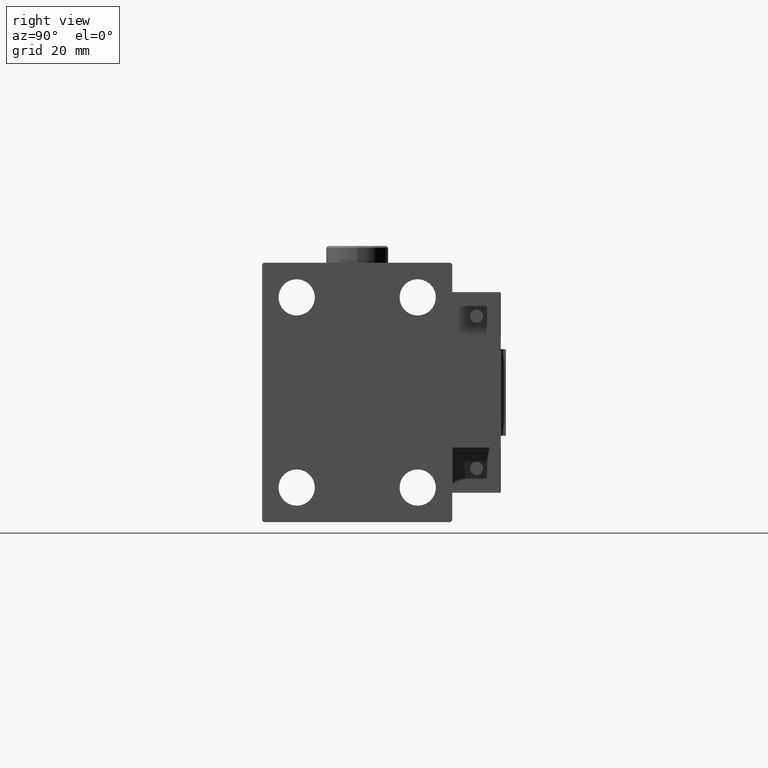
[diagram: clean part render]
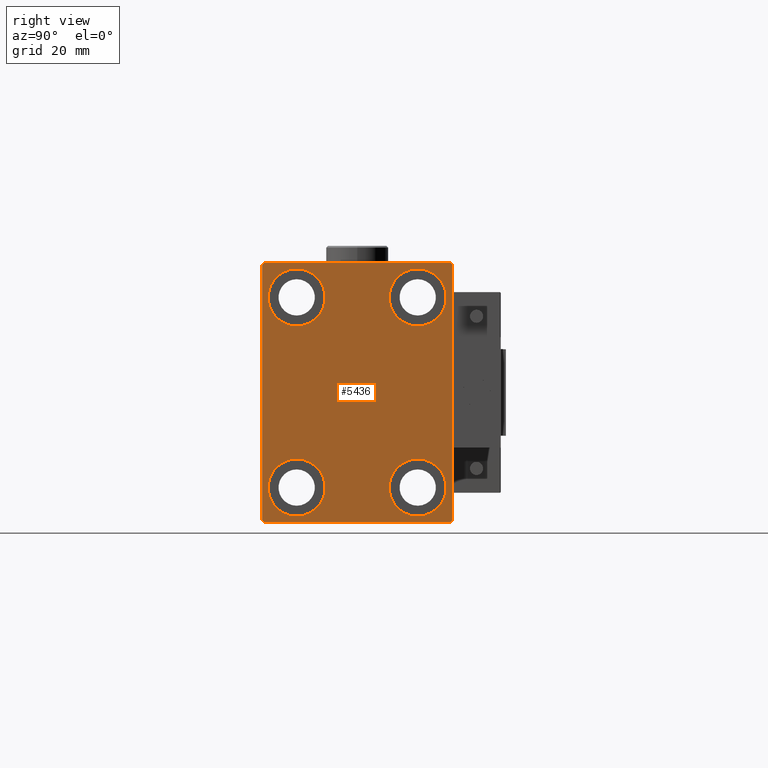
[diagram: same view with one face highlighted and labeled with its STEP entity id]
A machine part, right view. The second image highlights one B-rep face of the part: STEP entity #5436.
In plain terms, the highlighted planar face has unit normal (1, 0, 0).
Its self-contained STEP definition (entity closure, byte-faithful):
#67 = CARTESIAN_POINT ( 'NONE',  ( 105.0000000000000000, 17.50000000000000355, 19.25000000000000000 ) ) ;
#111 = CARTESIAN_POINT ( 'NONE',  ( 105.0000000000000000, 32.24999999999999289, -32.24999999999999289 ) ) ;
#1012 = CARTESIAN_POINT ( 'NONE',  ( 105.0000000000000000, 17.49999999999999645, -27.50000000000000355 ) ) ;
#1564 = DIRECTION ( 'NONE',  ( 0.000000000000000000, -0.7071067811865474617, -0.7071067811865474617 ) ) ;
#1590 = CIRCLE ( 'NONE', #48187, 8.250000000000000000 ) ;
#1649 = CARTESIAN_POINT ( 'NONE',  ( 105.0000000000000000, -27.50000000000000355, -37.00000000000000000 ) ) ;
#1743 = CARTESIAN_POINT ( 'NONE',  ( 105.0000000000000000, 27.50000000000000355, -36.99999999999998579 ) ) ;
#2610 = ORIENTED_EDGE ( 'NONE', *, *, #31699, .T. ) ;
#3902 = VECTOR ( 'NONE', #1564, 1000.000000000000114 ) ;
#4124 = VERTEX_POINT ( 'NONE', #42516 ) ;
#4378 = VECTOR ( 'NONE', #25221, 1000.000000000000000 ) ;
#5195 = CARTESIAN_POINT ( 'NONE',  ( 105.0000000000000000, 17.50000000000000355, 35.74999999999999289 ) ) ;
#5216 = VERTEX_POINT ( 'NONE', #12584 ) ;
#5427 = VERTEX_POINT ( 'NONE', #1743 ) ;
#5436 = ADVANCED_FACE ( 'NONE', ( #13228, #13740, #49955, #33026, #24946 ), #45515, .T. ) ;
#5475 = ORIENTED_EDGE ( 'NONE', *, *, #28929, .T. ) ;
#5704 = LINE ( 'NONE', #25755, #7893 ) ;
#6393 = VECTOR ( 'NONE', #18607, 1000.000000000000000 ) ;
#6540 = CARTESIAN_POINT ( 'NONE',  ( 105.0000000000000000, -32.25000000000000000, 32.25000000000000000 ) ) ;
#6750 = VERTEX_POINT ( 'NONE', #7171 ) ;
#7171 = CARTESIAN_POINT ( 'NONE',  ( 105.0000000000000000, -17.49999999999999645, 19.25000000000000000 ) ) ;
#7382 = CARTESIAN_POINT ( 'NONE',  ( 105.0000000000000000, -32.25000000000038369, -32.24999999999949551 ) ) ;
#7790 = ORIENTED_EDGE ( 'NONE', *, *, #12487, .T. ) ;
#7848 = DIRECTION ( 'NONE',  ( 0.000000000000000000, 0.000000000000000000, 1.000000000000000000 ) ) ;
#7893 = VECTOR ( 'NONE', #9617, 1000.000000000000000 ) ;
#9617 = DIRECTION ( 'NONE',  ( -0.000000000000000000, -0.7071067811865524577, 0.7071067811865426878 ) ) ;
#9627 = CARTESIAN_POINT ( 'NONE',  ( 105.0000000000000000, -27.00000000000001776, -37.50000000000000000 ) ) ;
#9840 = CARTESIAN_POINT ( 'NONE',  ( 105.0000000000000000, 0.000000000000000000, 0.000000000000000000 ) ) ;
#10711 = DIRECTION ( 'NONE',  ( 0.000000000000000000, 0.000000000000000000, 1.000000000000000000 ) ) ;
#10740 = CARTESIAN_POINT ( 'NONE',  ( 105.0000000000000000, -17.49999999999999645, 27.49999999999999645 ) ) ;
#11234 = CARTESIAN_POINT ( 'NONE',  ( 105.0000000000000000, 17.50000000000000355, 27.49999999999999645 ) ) ;
#11373 = AXIS2_PLACEMENT_3D ( 'NONE', #11234, #31547, #7848 ) ;
#12190 = LINE ( 'NONE', #20253, #49714 ) ;
#12203 = VERTEX_POINT ( 'NONE', #42317 ) ;
#12487 = EDGE_CURVE ( 'NONE', #5216, #4124, #5704, .T. ) ;
#12552 = VERTEX_POINT ( 'NONE', #5195 ) ;
#12584 = CARTESIAN_POINT ( 'NONE',  ( 105.0000000000000000, 27.49999999999999645, 37.00000000000001421 ) ) ;
#12585 = EDGE_CURVE ( 'NONE', #12203, #26832, #17049, .T. ) ;
#12826 = DIRECTION ( 'NONE',  ( 0.000000000000000000, 0.000000000000000000, 1.000000000000000000 ) ) ;
#12987 = CARTESIAN_POINT ( 'NONE',  ( 105.0000000000000000, 27.50000000000000355, -37.50000000000000000 ) ) ;
#13028 = CIRCLE ( 'NONE', #11373, 8.249999999999992895 ) ;
#13228 = FACE_BOUND ( 'NONE', #16919, .T. ) ;
#13266 = VERTEX_POINT ( 'NONE', #67 ) ;
#13577 = VERTEX_POINT ( 'NONE', #9627 ) ;
#13740 = FACE_BOUND ( 'NONE', #39333, .T. ) ;
#14180 = CIRCLE ( 'NONE', #22512, 8.250000000000000000 ) ;
#14245 = CARTESIAN_POINT ( 'NONE',  ( 105.0000000000000000, 17.49999999999999645, -27.50000000000000355 ) ) ;
#14492 = ORIENTED_EDGE ( 'NONE', *, *, #47479, .T. ) ;
#14542 = CARTESIAN_POINT ( 'NONE',  ( 105.0000000000000000, 26.99999999999998934, -37.50000000000000000 ) ) ;
#14953 = CARTESIAN_POINT ( 'NONE',  ( 105.0000000000000000, -27.50000000000000355, -37.50000000000000000 ) ) ;
#15167 = LINE ( 'NONE', #7382, #4378 ) ;
#15364 = DIRECTION ( 'NONE',  ( -1.000000000000000000, -0.000000000000000000, -0.000000000000000000 ) ) ;
#15727 = ORIENTED_EDGE ( 'NONE', *, *, #26321, .T. ) ;
#16782 = EDGE_CURVE ( 'NONE', #20748, #27705, #37260, .T. ) ;
#16919 = EDGE_LOOP ( 'NONE', ( #37216, #28365 ) ) ;
#17010 = AXIS2_PLACEMENT_3D ( 'NONE', #1012, #25243, #41404 ) ;
#17049 = CIRCLE ( 'NONE', #17010, 8.250000000000000000 ) ;
#17132 = DIRECTION ( 'NONE',  ( 0.000000000000000000, 0.000000000000000000, -1.000000000000000000 ) ) ;
#17835 = CARTESIAN_POINT ( 'NONE',  ( 105.0000000000000000, 17.49999999999999645, -35.75000000000000711 ) ) ;
#18113 = CARTESIAN_POINT ( 'NONE',  ( 105.0000000000000000, -27.00000000000000355, 37.50000000000000000 ) ) ;
#18329 = VERTEX_POINT ( 'NONE', #14542 ) ;
#18465 = EDGE_CURVE ( 'NONE', #4124, #20748, #12190, .T. ) ;
#18607 = DIRECTION ( 'NONE',  ( 0.000000000000000000, 0.000000000000000000, -1.000000000000000000 ) ) ;
#18834 = EDGE_LOOP ( 'NONE', ( #37723, #45033, #48888, #43764, #41907, #48587, #2610, #7790 ) ) ;
#20214 = ORIENTED_EDGE ( 'NONE', *, *, #36988, .T. ) ;
#20253 = CARTESIAN_POINT ( 'NONE',  ( 105.0000000000000000, 27.49999999999999645, 37.50000000000000711 ) ) ;
#20748 = VERTEX_POINT ( 'NONE', #18113 ) ;
#20891 = CARTESIAN_POINT ( 'NONE',  ( 105.0000000000000000, -17.50000000000000355, -27.50000000000000355 ) ) ;
#21790 = DIRECTION ( 'NONE',  ( 1.000000000000000000, 0.000000000000000000, 0.000000000000000000 ) ) ;
#21970 = LINE ( 'NONE', #14953, #22156 ) ;
#22055 = DIRECTION ( 'NONE',  ( 0.000000000000000000, 0.000000000000000000, 1.000000000000000000 ) ) ;
#22156 = VECTOR ( 'NONE', #45960, 1000.000000000000000 ) ;
#22512 = AXIS2_PLACEMENT_3D ( 'NONE', #29907, #38740, #22055 ) ;
#22662 = VECTOR ( 'NONE', #45273, 1000.000000000000000 ) ;
#23072 = ORIENTED_EDGE ( 'NONE', *, *, #27260, .T. ) ;
#23437 = EDGE_CURVE ( 'NONE', #38303, #6750, #46559, .T. ) ;
#23799 = EDGE_CURVE ( 'NONE', #26832, #12203, #36568, .T. ) ;
#24946 = FACE_OUTER_BOUND ( 'NONE', #18834, .T. ) ;
#25221 = DIRECTION ( 'NONE',  ( -0.000000000000000000, 0.7071067811865378028, -0.7071067811865573427 ) ) ;
#25243 = DIRECTION ( 'NONE',  ( -1.000000000000000000, -0.000000000000000000, -0.000000000000000000 ) ) ;
#25741 = AXIS2_PLACEMENT_3D ( 'NONE', #42463, #41931, #27067 ) ;
#25755 = CARTESIAN_POINT ( 'NONE',  ( 105.0000000000000000, 32.24999999999981526, 32.25000000000025580 ) ) ;
#26294 = EDGE_LOOP ( 'NONE', ( #20214, #14492 ) ) ;
#26321 = EDGE_CURVE ( 'NONE', #27107, #43312, #1590, .T. ) ;
#26832 = VERTEX_POINT ( 'NONE', #17835 ) ;
#27067 = DIRECTION ( 'NONE',  ( 0.000000000000000000, 0.000000000000000000, 1.000000000000000000 ) ) ;
#27107 = VERTEX_POINT ( 'NONE', #49298 ) ;
#27260 = EDGE_CURVE ( 'NONE', #6750, #38303, #30785, .T. ) ;
#27558 = CARTESIAN_POINT ( 'NONE',  ( 105.0000000000000000, -17.50000000000000355, -19.25000000000000355 ) ) ;
#27705 = VERTEX_POINT ( 'NONE', #45270 ) ;
#27752 = EDGE_LOOP ( 'NONE', ( #15727, #5475 ) ) ;
#28365 = ORIENTED_EDGE ( 'NONE', *, *, #12585, .T. ) ;
#28929 = EDGE_CURVE ( 'NONE', #43312, #27107, #14180, .T. ) ;
#29492 = DIRECTION ( 'NONE',  ( -1.000000000000000000, -0.000000000000000000, -0.000000000000000000 ) ) ;
#29894 = DIRECTION ( 'NONE',  ( 0.000000000000000000, 0.000000000000000000, 1.000000000000000000 ) ) ;
#29907 = CARTESIAN_POINT ( 'NONE',  ( 105.0000000000000000, -17.50000000000000355, -27.50000000000000355 ) ) ;
#30264 = CIRCLE ( 'NONE', #45208, 8.249999999999992895 ) ;
#30282 = DIRECTION ( 'NONE',  ( -1.000000000000000000, -0.000000000000000000, -0.000000000000000000 ) ) ;
#30785 = CIRCLE ( 'NONE', #32406, 8.249999999999992895 ) ;
#30924 = DIRECTION ( 'NONE',  ( -1.000000000000000000, -0.000000000000000000, -0.000000000000000000 ) ) ;
#31547 = DIRECTION ( 'NONE',  ( -1.000000000000000000, -0.000000000000000000, -0.000000000000000000 ) ) ;
#31606 = AXIS2_PLACEMENT_3D ( 'NONE', #14245, #30924, #29894 ) ;
#31699 = EDGE_CURVE ( 'NONE', #5427, #5216, #36682, .T. ) ;
#32406 = AXIS2_PLACEMENT_3D ( 'NONE', #10740, #30282, #33913 ) ;
#32949 = EDGE_CURVE ( 'NONE', #18329, #5427, #35813, .T. ) ;
#33026 = FACE_BOUND ( 'NONE', #27752, .T. ) ;
#33913 = DIRECTION ( 'NONE',  ( 0.000000000000000000, 0.000000000000000000, 1.000000000000000000 ) ) ;
#33959 = LINE ( 'NONE', #37607, #6393 ) ;
#35169 = VECTOR ( 'NONE', #47285, 1000.000000000000114 ) ;
#35770 = EDGE_CURVE ( 'NONE', #45883, #13577, #15167, .T. ) ;
#35813 = LINE ( 'NONE', #111, #35169 ) ;
#35884 = DIRECTION ( 'NONE',  ( 0.000000000000000000, -1.000000000000000000, -1.261617073437677999E-16 ) ) ;
#36568 = CIRCLE ( 'NONE', #31606, 8.250000000000000000 ) ;
#36682 = LINE ( 'NONE', #12987, #22662 ) ;
#36988 = EDGE_CURVE ( 'NONE', #13266, #12552, #30264, .T. ) ;
#37216 = ORIENTED_EDGE ( 'NONE', *, *, #23799, .T. ) ;
#37260 = LINE ( 'NONE', #6540, #3902 ) ;
#37607 = CARTESIAN_POINT ( 'NONE',  ( 105.0000000000000000, -27.50000000000000355, 37.50000000000000000 ) ) ;
#37723 = ORIENTED_EDGE ( 'NONE', *, *, #18465, .T. ) ;
#38303 = VERTEX_POINT ( 'NONE', #46567 ) ;
#38740 = DIRECTION ( 'NONE',  ( -1.000000000000000000, -0.000000000000000000, -0.000000000000000000 ) ) ;
#39333 = EDGE_LOOP ( 'NONE', ( #23072, #40813 ) ) ;
#40813 = ORIENTED_EDGE ( 'NONE', *, *, #23437, .T. ) ;
#41404 = DIRECTION ( 'NONE',  ( 0.000000000000000000, 0.000000000000000000, 1.000000000000000000 ) ) ;
#41907 = ORIENTED_EDGE ( 'NONE', *, *, #48068, .T. ) ;
#41931 = DIRECTION ( 'NONE',  ( -1.000000000000000000, -0.000000000000000000, -0.000000000000000000 ) ) ;
#42317 = CARTESIAN_POINT ( 'NONE',  ( 105.0000000000000000, 17.49999999999999645, -19.25000000000000355 ) ) ;
#42463 = CARTESIAN_POINT ( 'NONE',  ( 105.0000000000000000, -17.49999999999999645, 27.49999999999999645 ) ) ;
#42516 = CARTESIAN_POINT ( 'NONE',  ( 105.0000000000000000, 26.99999999999999645, 37.50000000000000711 ) ) ;
#42745 = AXIS2_PLACEMENT_3D ( 'NONE', #9840, #21790, #17132 ) ;
#43312 = VERTEX_POINT ( 'NONE', #27558 ) ;
#43764 = ORIENTED_EDGE ( 'NONE', *, *, #35770, .T. ) ;
#45033 = ORIENTED_EDGE ( 'NONE', *, *, #16782, .T. ) ;
#45208 = AXIS2_PLACEMENT_3D ( 'NONE', #50828, #15364, #10711 ) ;
#45270 = CARTESIAN_POINT ( 'NONE',  ( 105.0000000000000000, -27.50000000000000355, 37.00000000000000000 ) ) ;
#45273 = DIRECTION ( 'NONE',  ( 0.000000000000000000, -9.251858538542970348E-17, 1.000000000000000000 ) ) ;
#45465 = EDGE_CURVE ( 'NONE', #27705, #45883, #33959, .T. ) ;
#45515 = PLANE ( 'NONE',  #42745 ) ;
#45883 = VERTEX_POINT ( 'NONE', #1649 ) ;
#45960 = DIRECTION ( 'NONE',  ( 0.000000000000000000, 1.000000000000000000, 0.000000000000000000 ) ) ;
#46559 = CIRCLE ( 'NONE', #25741, 8.249999999999992895 ) ;
#46567 = CARTESIAN_POINT ( 'NONE',  ( 105.0000000000000000, -17.49999999999999645, 35.74999999999999289 ) ) ;
#47285 = DIRECTION ( 'NONE',  ( -0.000000000000000000, 0.7071067811865474617, 0.7071067811865474617 ) ) ;
#47479 = EDGE_CURVE ( 'NONE', #12552, #13266, #13028, .T. ) ;
#48068 = EDGE_CURVE ( 'NONE', #13577, #18329, #21970, .T. ) ;
#48187 = AXIS2_PLACEMENT_3D ( 'NONE', #20891, #29492, #12826 ) ;
#48587 = ORIENTED_EDGE ( 'NONE', *, *, #32949, .T. ) ;
#48888 = ORIENTED_EDGE ( 'NONE', *, *, #45465, .T. ) ;
#49298 = CARTESIAN_POINT ( 'NONE',  ( 105.0000000000000000, -17.50000000000000355, -35.75000000000000711 ) ) ;
#49714 = VECTOR ( 'NONE', #35884, 1000.000000000000000 ) ;
#49955 = FACE_BOUND ( 'NONE', #26294, .T. ) ;
#50828 = CARTESIAN_POINT ( 'NONE',  ( 105.0000000000000000, 17.50000000000000355, 27.49999999999999645 ) ) ;